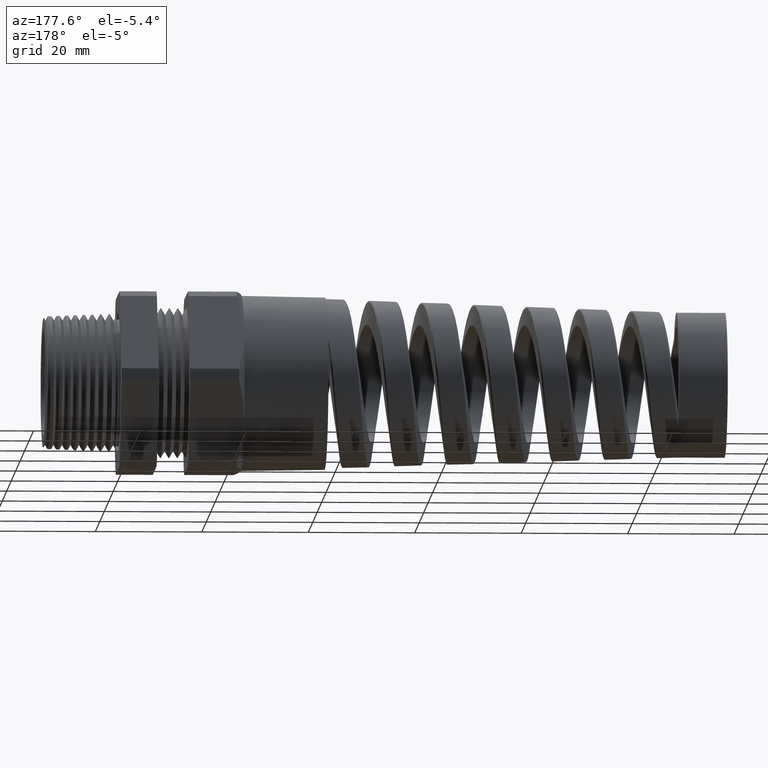
[diagram: clean part render]
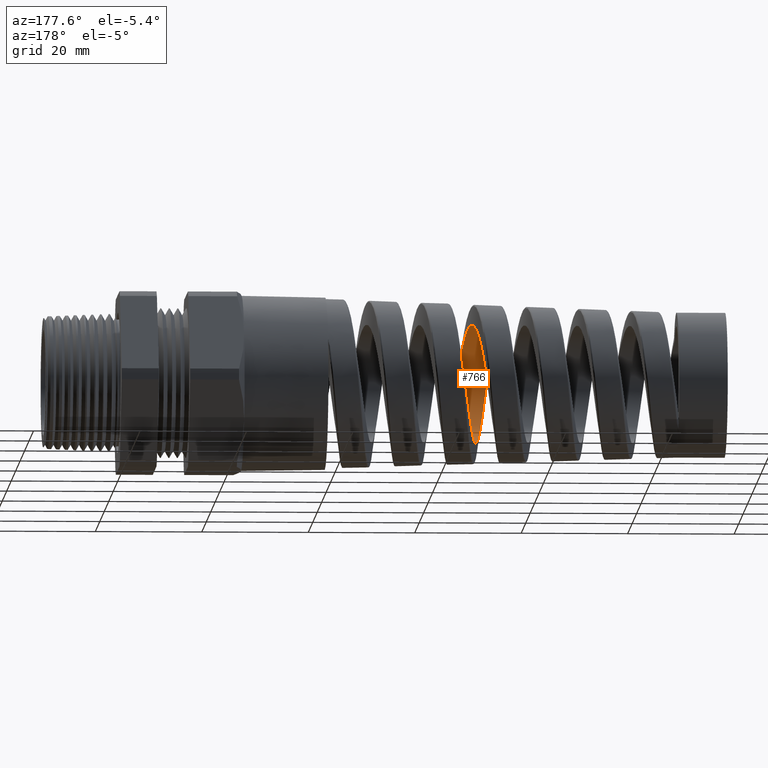
[diagram: same view with one face highlighted and labeled with its STEP entity id]
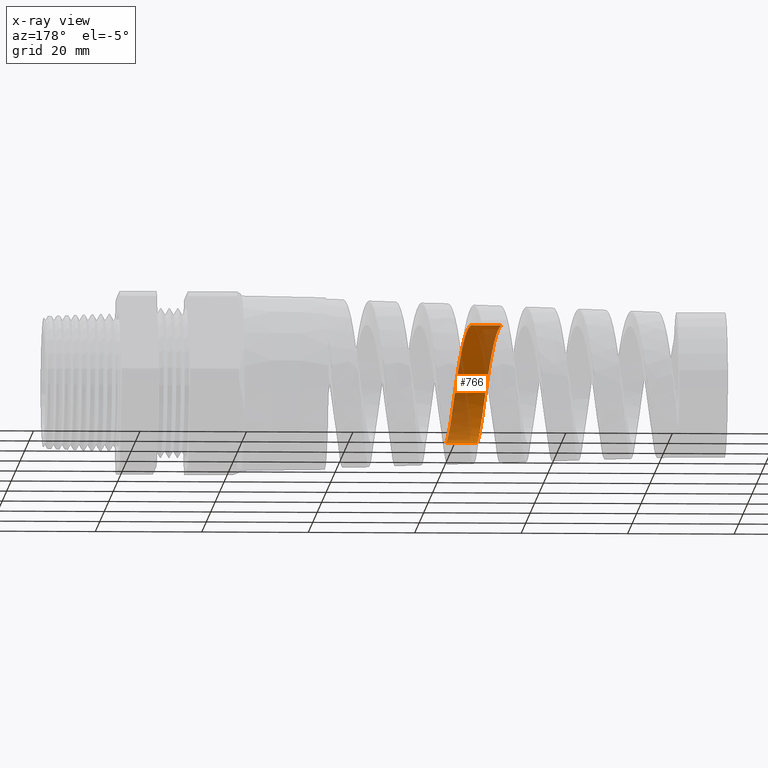
[diagram: x-ray of the same camera — body ghosted, the highlighted face saturated]
A machine part, auxiliary view. The second image highlights one B-rep face of the part: STEP entity #766.
The next image is the same camera in x-ray: the body ghosted, the highlighted face saturated — about 43% of this face is hidden behind the body in this view.
In plain terms, the highlighted cylindrical surface (partial cylindrical patch) has radius 11.1145 mm, axis along (1, 0, 0).
Its self-contained STEP definition (entity closure, byte-faithful):
#750 = EDGE_LOOP ( 'NONE', ( #767, #771, #774, #784 ) ) ;
#766 = ADVANCED_FACE ( 'NONE', ( #6937 ), #6936, .F. ) ;
#767 = ORIENTED_EDGE ( 'NONE', *, *, #768, .F. ) ;
#768 = EDGE_CURVE ( 'NONE', #769, #770, #6930, .T. ) ;
#769 = VERTEX_POINT ( 'NONE', #6931 ) ;
#770 = VERTEX_POINT ( 'NONE', #6932 ) ;
#771 = ORIENTED_EDGE ( 'NONE', *, *, #772, .T. ) ;
#772 = EDGE_CURVE ( 'NONE', #769, #773, #6951, .T. ) ;
#773 = VERTEX_POINT ( 'NONE', #6947 ) ;
#774 = ORIENTED_EDGE ( 'NONE', *, *, #775, .F. ) ;
#775 = EDGE_CURVE ( 'NONE', #783, #773, #6946, .T. ) ;
#783 = VERTEX_POINT ( 'NONE', #7065 ) ;
#784 = ORIENTED_EDGE ( 'NONE', *, *, #785, .F. ) ;
#785 = EDGE_CURVE ( 'NONE', #770, #783, #7090, .T. ) ;
#6859 = CARTESIAN_POINT ( 'NONE',  ( 0.4924815508901369000, 0.0000000000000000000, 0.0000000000000000000 ) ) ;
#6906 = CARTESIAN_POINT ( 'NONE',  ( -2.752038503089747000, -0.4319570295002964600, 0.07136591356443028300 ) ) ;
#6907 = CARTESIAN_POINT ( 'NONE',  ( -2.758057950272381200, -0.4236077163341141500, 0.1133451719487108300 ) ) ;
#6908 = CARTESIAN_POINT ( 'NONE',  ( -2.762051413872689900, -0.4153539549610822900, 0.1406711115590660000 ) ) ;
#6909 = CARTESIAN_POINT ( 'NONE',  ( -2.768132300535649300, -0.3988226932143227900, 0.1806227820007141300 ) ) ;
#6910 = CARTESIAN_POINT ( 'NONE',  ( -2.770163854021553600, -0.3926377494403368600, 0.1936926218242608400 ) ) ;
#6911 = CARTESIAN_POINT ( 'NONE',  ( -2.774190373717509300, -0.3791424291204642000, 0.2189343565440627600 ) ) ;
#6912 = CARTESIAN_POINT ( 'NONE',  ( -2.776194624755225600, -0.3718068021981134600, 0.2311693432999957500 ) ) ;
#6913 = CARTESIAN_POINT ( 'NONE',  ( -2.780203204843855000, -0.3559752726450234900, 0.2548748098730818100 ) ) ;
#6914 = CARTESIAN_POINT ( 'NONE',  ( -2.782207744741112900, -0.3474793928975982200, 0.2663452690841776000 ) ) ;
#6915 = CARTESIAN_POINT ( 'NONE',  ( -2.786237358066086400, -0.3293104732028585000, 0.2885070936578785200 ) ) ;
#6916 = CARTESIAN_POINT ( 'NONE',  ( -2.788273753538629500, -0.3195786861888954000, 0.2992538240901658200 ) ) ;
#6917 = CARTESIAN_POINT ( 'NONE',  ( -2.794344281871102200, -0.2890593126153948000, 0.3297711553684039600 ) ) ;
#6918 = CARTESIAN_POINT ( 'NONE',  ( -2.798338863865415000, -0.2669958172706795000, 0.3478575789502034700 ) ) ;
#6919 = CARTESIAN_POINT ( 'NONE',  ( -2.804361169718360800, -0.2313951993531221400, 0.3716671760496841300 ) ) ;
#6920 = CARTESIAN_POINT ( 'NONE',  ( -2.806373947572681400, -0.2191078770484753700, 0.3790464875652727600 ) ) ;
#6921 = CARTESIAN_POINT ( 'NONE',  ( -2.810430870301814800, -0.1936682249493944000, 0.3926539445430430300 ) ) ;
#6922 = CARTESIAN_POINT ( 'NONE',  ( -2.812458452375264300, -0.1806178850127355700, 0.3988210201323483300 ) ) ;
#6923 = CARTESIAN_POINT ( 'NONE',  ( -2.818494704792966900, -0.1409697114928283600, 0.4152377582935048400 ) ) ;
#6924 = CARTESIAN_POINT ( 'NONE',  ( -2.822485926653184300, -0.1136908261458748300, 0.4235245933732380000 ) ) ;
#6925 = CARTESIAN_POINT ( 'NONE',  ( -2.828533916301107600, -0.07150841957198418600, 0.4319357936474769700 ) ) ;
#6926 = CARTESIAN_POINT ( 'NONE',  ( -2.830571545981440000, -0.05715690367985393900, 0.4340692974012564900 ) ) ;
#6927 = CARTESIAN_POINT ( 'NONE',  ( -2.834614744534691400, -0.02854445368515076700, 0.4368847453831556400 ) ) ;
#6928 = CARTESIAN_POINT ( 'NONE',  ( -2.836623804412201600, -0.01426063473236466500, 0.4375801833083614600 ) ) ;
#6929 = CARTESIAN_POINT ( 'NONE',  ( -2.838629872620516800, 1.205427927204356100E-014, 0.4375801833083612400 ) ) ;
#6930 = B_SPLINE_CURVE_WITH_KNOTS ( 'NONE', 3,
 ( #6929, #6928, #6927, #6926, #6925, #6924, #6923, #6922, #6921, #6920, #6919, #6918, #6917, #6916, #6915, #6914, #6913, #6912, #6911, #6910, #6909, #6908, #6907, #6906, #6978, #6977, #6976, #6975, #6974, #6973, #6972, #6971, #6970, #6969, #6968, #6967, #6966, #6965, #6964, #6963, #6962, #6961, #6960, #6959, #6958, #6957, #6956, #6955, #6954, #6953, #6952 ),
 .UNSPECIFIED., .F., .F.,
 ( 4, 2, 2, 2, 2, 2, 2, 2, 2, 2, 2, 2, 2, 2, 2, 2, 2, 2, 2, 1, 2, 2, 2, 2, 2, 4 ),
 ( 0.2343693238038500000, 0.2354651931219809700, 0.2365610624401119100, 0.2387528010763738400, 0.2398486703945048000, 0.2409445397126357700, 0.2431362783488977000, 0.2442321476670286700, 0.2453280169851596300, 0.2464238863032906000, 0.2475197556214215600, 0.2497114942576834900, 0.2508073635758144600, 0.2519032328939454500, 0.2540949715302073800, 0.2551908408483383700, 0.2562867101664693100, 0.2584784488027313000, 0.2595743181208622400, 0.2606701874389932300, 0.2617660567571241700, 0.2628619260752551600, 0.2650536647115170900, 0.2661495340296480300, 0.2672454033477790200, 0.2694371419840409500 ),
 .UNSPECIFIED. ) ;
#6931 = CARTESIAN_POINT ( 'NONE',  ( -2.838629872620516800, 1.205427927204356100E-014, 0.4375801833083612400 ) ) ;
#6932 = CARTESIAN_POINT ( 'NONE',  ( -2.645293719206423000, 1.372326765567282600E-015, -0.4375801833083615100 ) ) ;
#6933 = DIRECTION ( 'NONE',  ( 0.0000000000000000000, 0.0000000000000000000, -1.000000000000000000 ) ) ;
#6934 = DIRECTION ( 'NONE',  ( 1.000000000000000000, 0.0000000000000000000, 0.0000000000000000000 ) ) ;
#6935 = AXIS2_PLACEMENT_3D ( 'NONE', #6859, #6934, #6933 ) ;
#6936 = CYLINDRICAL_SURFACE ( 'NONE', #6935, 0.4375801833083611800 ) ;
#6937 = FACE_OUTER_BOUND ( 'NONE', #750, .T. ) ;
#6943 = CARTESIAN_POINT ( 'NONE',  ( -2.426668176533647500, -0.05696718122890346400, -0.4348186535289689200 ) ) ;
#6944 = CARTESIAN_POINT ( 'NONE',  ( -2.422643413442983300, -0.02851587987685774400, -0.4375801833084020400 ) ) ;
#6945 = CARTESIAN_POINT ( 'NONE',  ( -2.418607193346873800, 6.278853817563000900E-013, -0.4375801833083608500 ) ) ;
#6946 = B_SPLINE_CURVE_WITH_KNOTS ( 'NONE', 3,
 ( #6945, #6944, #6943, #7028, #7027, #7026, #7025, #7024, #7023, #7022, #7021, #7020, #7019, #7018, #7017, #7016, #7015, #7014, #7013, #7012, #7011, #7010, #7009, #7008, #7007, #7006, #7005, #7004, #7003, #7002, #7001, #7000, #6999, #6998, #6997, #6996, #6995, #6994, #6993, #6992, #6991, #6990, #6989, #6988, #6987, #6986, #6985 ),
 .UNSPECIFIED., .F., .F.,
 ( 4, 2, 2, 2, 2, 2, 2, 2, 2, 2, 2, 2, 2, 2, 2, 2, 2, 2, 2, 2, 1, 2, 2, 4 ),
 ( 0.2109982535412034400, 0.2131921187832376800, 0.2153859840252719000, 0.2164829166462890200, 0.2175798492673061400, 0.2197737145093403600, 0.2219675797513746000, 0.2241614449934088100, 0.2252583776144259400, 0.2263553102354430300, 0.2274522428564601500, 0.2285491754774772700, 0.2307430407195114900, 0.2318399733405285800, 0.2329369059615457000, 0.2351307712035799200, 0.2362277038245970400, 0.2373246364456141300, 0.2395185016876483500, 0.2406154343086654400, 0.2417123669296825600, 0.2428092995506996600, 0.2439062321717167500, 0.2461000974137509700 ),
 .UNSPECIFIED. ) ;
#6947 = CARTESIAN_POINT ( 'NONE',  ( -2.613139241122711500, -6.848721577553856900E-014, 0.4375801833083611800 ) ) ;
#6948 = DIRECTION ( 'NONE',  ( 1.000000000000000000, 0.0000000000000000000, 0.0000000000000000000 ) ) ;
#6949 = VECTOR ( 'NONE', #6948, 39.37007874015748100 ) ;
#6950 = CARTESIAN_POINT ( 'NONE',  ( 0.4924815508901369000, 5.358811708588965500E-017, 0.4375801833083611800 ) ) ;
#6951 = LINE ( 'NONE', #6950, #6949 ) ;
#6952 = CARTESIAN_POINT ( 'NONE',  ( -2.645293719206423000, 1.372326765567282600E-015, -0.4375801833083615100 ) ) ;
#6953 = CARTESIAN_POINT ( 'NONE',  ( -2.649325344653594300, -0.02867265422649638300, -0.4375801833083613500 ) ) ;
#6954 = CARTESIAN_POINT ( 'NONE',  ( -2.653315100399569600, -0.05704536375712800100, -0.4347882183207568700 ) ) ;
#6955 = CARTESIAN_POINT ( 'NONE',  ( -2.659352112796054400, -0.09914129452303419000, -0.4264411546950077100 ) ) ;
#6956 = CARTESIAN_POINT ( 'NONE',  ( -2.661380882352673400, -0.1131492842469559400, -0.4229440702847241400 ) ) ;
#6957 = CARTESIAN_POINT ( 'NONE',  ( -2.665437734687613200, -0.1407550857227189100, -0.4145750269345685500 ) ) ;
#6958 = CARTESIAN_POINT ( 'NONE',  ( -2.667450385527923000, -0.1542470599501124300, -0.4097414474426534500 ) ) ;
#6959 = CARTESIAN_POINT ( 'NONE',  ( -2.673472206423701100, -0.1938145805054426200, -0.3933541596749418600 ) ) ;
#6960 = CARTESIAN_POINT ( 'NONE',  ( -2.677465415445006600, -0.2189901124378859400, -0.3799313285937401300 ) ) ;
#6961 = CARTESIAN_POINT ( 'NONE',  ( -2.683537539114325000, -0.2548918417704686400, -0.3559685134462500200 ) ) ;
#6962 = CARTESIAN_POINT ( 'NONE',  ( -2.685574183151934400, -0.2665355822516773400, -0.3473333831198821600 ) ) ;
#6963 = CARTESIAN_POINT ( 'NONE',  ( -2.689603728523141800, -0.2886856002116489100, -0.3291539455424826700 ) ) ;
#6964 = CARTESIAN_POINT ( 'NONE',  ( -2.693612628403872800, -0.3098346274044570000, -0.3099796753650744800 ) ) ;
#6965 = CARTESIAN_POINT ( 'NONE',  ( -2.697620263161835100, -0.3290086671937329500, -0.2888504158282137500 ) ) ;
#6966 = CARTESIAN_POINT ( 'NONE',  ( -2.701646486165449000, -0.3471809214204404900, -0.2667333380257939100 ) ) ;
#6967 = CARTESIAN_POINT ( 'NONE',  ( -2.703678654254380900, -0.3558040401521477800, -0.2551226414270276200 ) ) ;
#6968 = CARTESIAN_POINT ( 'NONE',  ( -2.709760036973072800, -0.3798255124260879700, -0.2191794658878947800 ) ) ;
#6969 = CARTESIAN_POINT ( 'NONE',  ( -2.713753504590974400, -0.3932633871336489500, -0.1939963855620522300 ) ) ;
#6970 = CARTESIAN_POINT ( 'NONE',  ( -2.719772495336516500, -0.4096613911870068400, -0.1544588278687980500 ) ) ;
#6971 = CARTESIAN_POINT ( 'NONE',  ( -2.721783526457938400, -0.4144965156406436600, -0.1409837307901106500 ) ) ;
#6972 = CARTESIAN_POINT ( 'NONE',  ( -2.725834625776654400, -0.4228686912903322200, -0.1134277027543741000 ) ) ;
#6973 = CARTESIAN_POINT ( 'NONE',  ( -2.727869357114601100, -0.4263857720112757500, -0.09938123892197943400 ) ) ;
#6974 = CARTESIAN_POINT ( 'NONE',  ( -2.733911697992239100, -0.4347633876479624100, -0.05724836400813163700 ) ) ;
#6975 = CARTESIAN_POINT ( 'NONE',  ( -2.737899870901318300, -0.4375645909525564000, -0.02887808438488616300 ) ) ;
#6976 = CARTESIAN_POINT ( 'NONE',  ( -2.743941515783872000, -0.4375878830188342200, 0.01408318169071905900 ) ) ;
#6977 = CARTESIAN_POINT ( 'NONE',  ( -2.745976144419941100, -0.4368852115259275700, 0.02854884207539181900 ) ) ;
#6978 = CARTESIAN_POINT ( 'NONE',  ( -2.750026984886174900, -0.4340635053851293900, 0.05720662310147269600 ) ) ;
#6985 = CARTESIAN_POINT ( 'NONE',  ( -2.613139241122711500, -6.848721577553856900E-014, 0.4375801833083611800 ) ) ;
#6986 = CARTESIAN_POINT ( 'NONE',  ( -2.609101331009376200, -0.02854116722198628300, 0.4375801833083567400 ) ) ;
#6987 = CARTESIAN_POINT ( 'NONE',  ( -2.605082613763495500, -0.05694839920661680400, 0.4348140978795656000 ) ) ;
#6988 = CARTESIAN_POINT ( 'NONE',  ( -2.598965870694239100, -0.09933586090649304500, 0.4263992311529819500 ) ) ;
#6989 = CARTESIAN_POINT ( 'NONE',  ( -2.596919312333285200, -0.1133757964302862100, 0.4228798093574368000 ) ) ;
#6990 = CARTESIAN_POINT ( 'NONE',  ( -2.592867219322611700, -0.1407765067205505300, 0.4145640837481493500 ) ) ;
#6991 = CARTESIAN_POINT ( 'NONE',  ( -2.588834760828559600, -0.1676442547017014400, 0.4049448909215563900 ) ) ;
#6992 = CARTESIAN_POINT ( 'NONE',  ( -2.584801093676747800, -0.1934549126085145200, 0.3927553831410732200 ) ) ;
#6993 = CARTESIAN_POINT ( 'NONE',  ( -2.580747116136612900, -0.2187266213962461000, 0.3792627839522911800 ) ) ;
#6994 = CARTESIAN_POINT ( 'NONE',  ( -2.578698767749056000, -0.2311578758984387200, 0.3718194029048053100 ) ) ;
#6995 = CARTESIAN_POINT ( 'NONE',  ( -2.572586055653322700, -0.2670635026908712600, 0.3478251901794952600 ) ) ;
#6996 = CARTESIAN_POINT ( 'NONE',  ( -2.568568229737827800, -0.2891096009806815000, 0.3297075215878974600 ) ) ;
#6997 = CARTESIAN_POINT ( 'NONE',  ( -2.562509768244377400, -0.3194004376640363600, 0.2994386845931353800 ) ) ;
#6998 = CARTESIAN_POINT ( 'NONE',  ( -2.560484895186552600, -0.3290310883939259200, 0.2888300868104567400 ) ) ;
#6999 = CARTESIAN_POINT ( 'NONE',  ( -2.556404140590097900, -0.3473295209534687000, 0.2665454558810961800 ) ) ;
#7000 = CARTESIAN_POINT ( 'NONE',  ( -2.554360854707069100, -0.3559348398372839700, 0.2549344549641278100 ) ) ;
#7001 = CARTESIAN_POINT ( 'NONE',  ( -2.548284433509374800, -0.3797780557432261500, 0.2192353166229349700 ) ) ;
#7002 = CARTESIAN_POINT ( 'NONE',  ( -2.544270871000949600, -0.3932243917665316200, 0.1940945007895177300 ) ) ;
#7003 = CARTESIAN_POINT ( 'NONE',  ( -2.538187289188559100, -0.4096946480054763900, 0.1543765927627169200 ) ) ;
#7004 = CARTESIAN_POINT ( 'NONE',  ( -2.536137421256121600, -0.4145846706259008200, 0.1407226119423895500 ) ) ;
#7005 = CARTESIAN_POINT ( 'NONE',  ( -2.532065895566593100, -0.4229310293019509200, 0.1131929639309230700 ) ) ;
#7006 = CARTESIAN_POINT ( 'NONE',  ( -2.530043147380242700, -0.4263996368325945800, 0.09931370518451804200 ) ) ;
#7007 = CARTESIAN_POINT ( 'NONE',  ( -2.523986897400635000, -0.4347433460391240100, 0.05734476363150901900 ) ) ;
#7008 = CARTESIAN_POINT ( 'NONE',  ( -2.519967122528965000, -0.4375758129489648000, 0.02892677791073969300 ) ) ;
#7009 = CARTESIAN_POINT ( 'NONE',  ( -2.513841572810302500, -0.4375823609796601300, -0.01436410864487792600 ) ) ;
#7010 = CARTESIAN_POINT ( 'NONE',  ( -2.511802453229304200, -0.4368674351690989800, -0.02877201260043152000 ) ) ;
#7011 = CARTESIAN_POINT ( 'NONE',  ( -2.507753547898862000, -0.4340560853953001600, -0.05723896707326367500 ) ) ;
#7012 = CARTESIAN_POINT ( 'NONE',  ( -2.505736971597398700, -0.4319598685455878200, -0.07134626081374954900 ) ) ;
#7013 = CARTESIAN_POINT ( 'NONE',  ( -2.501702548221951300, -0.4264005301860247500, -0.09930863418203891800 ) ) ;
#7014 = CARTESIAN_POINT ( 'NONE',  ( -2.499684567280807900, -0.4229374311214425000, -0.1131636985918981800 ) ) ;
#7015 = CARTESIAN_POINT ( 'NONE',  ( -2.495626635114623700, -0.4146200159713286900, -0.1406141375486055200 ) ) ;
#7016 = CARTESIAN_POINT ( 'NONE',  ( -2.493575838081887800, -0.4097327763338309800, -0.1542790997099324200 ) ) ;
#7017 = CARTESIAN_POINT ( 'NONE',  ( -2.487474245112693900, -0.3932222924281018100, -0.1941106197589313200 ) ) ;
#7018 = CARTESIAN_POINT ( 'NONE',  ( -2.483455201141995200, -0.3797611797234017900, -0.2192577541856145500 ) ) ;
#7019 = CARTESIAN_POINT ( 'NONE',  ( -2.475370947669430300, -0.3480307084793708400, -0.2667717045542429800 ) ) ;
#7020 = CARTESIAN_POINT ( 'NONE',  ( -2.471266985281861000, -0.3295386957899781900, -0.2893063906961216800 ) ) ;
#7021 = CARTESIAN_POINT ( 'NONE',  ( -2.463174063852864700, -0.2890897084392728400, -0.3297287979462413300 ) ) ;
#7022 = CARTESIAN_POINT ( 'NONE',  ( -2.459156563867479100, -0.2670535167248240200, -0.3478255600788713300 ) ) ;
#7023 = CARTESIAN_POINT ( 'NONE',  ( -2.453065374206111000, -0.2312623730898571700, -0.3717527103745190700 ) ) ;
#7024 = CARTESIAN_POINT ( 'NONE',  ( -2.451014095492831700, -0.2188102006380630600, -0.3792160138302890200 ) ) ;
#7025 = CARTESIAN_POINT ( 'NONE',  ( -2.446949972492268100, -0.1934729359213816500, -0.3927478989308082500 ) ) ;
#7026 = CARTESIAN_POINT ( 'NONE',  ( -2.444929798297010000, -0.1805482500505624400, -0.3988509046631547600 ) ) ;
#7027 = CARTESIAN_POINT ( 'NONE',  ( -2.438875712783439700, -0.1410262557648502000, -0.4152122393429154000 ) ) ;
#7028 = CARTESIAN_POINT ( 'NONE',  ( -2.434849918431047900, -0.1136879682171481700, -0.4235416946140826400 ) ) ;
#7065 = CARTESIAN_POINT ( 'NONE',  ( -2.418607193346873800, 6.278853817563000900E-013, -0.4375801833083608500 ) ) ;
#7087 = DIRECTION ( 'NONE',  ( 1.000000000000000000, 0.0000000000000000000, 0.0000000000000000000 ) ) ;
#7088 = VECTOR ( 'NONE', #7087, 39.37007874015748100 ) ;
#7089 = CARTESIAN_POINT ( 'NONE',  ( 0.4924815508901369000, 0.0000000000000000000, -0.4375801833083611800 ) ) ;
#7090 = LINE ( 'NONE', #7089, #7088 ) ;